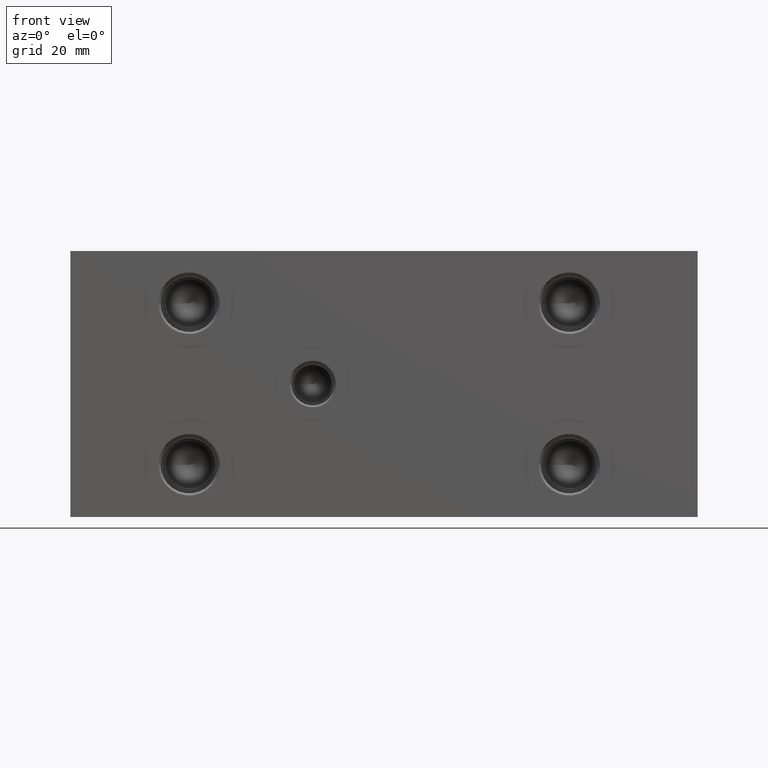
[diagram: clean part render]
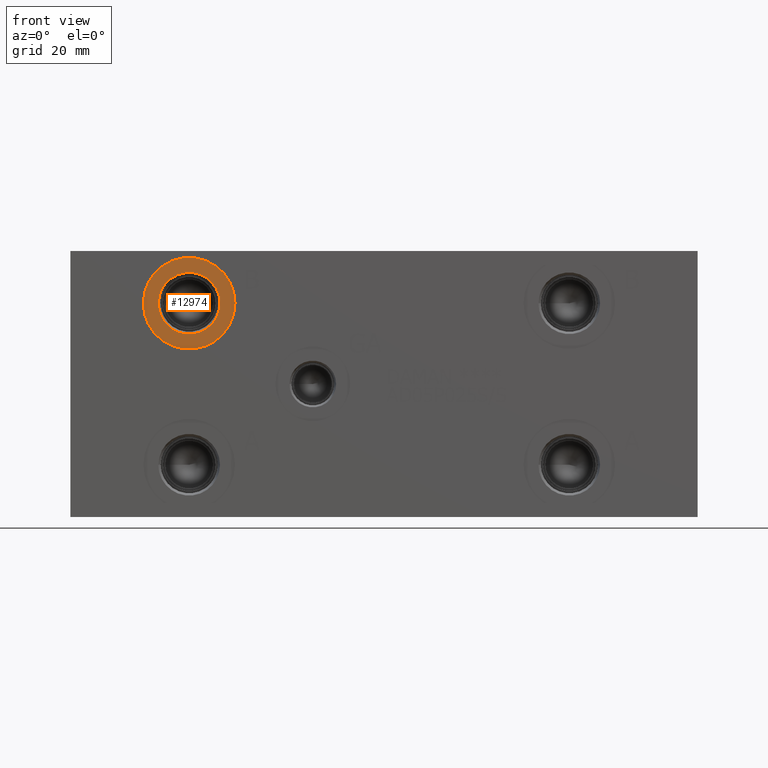
[diagram: same view with one face highlighted and labeled with its STEP entity id]
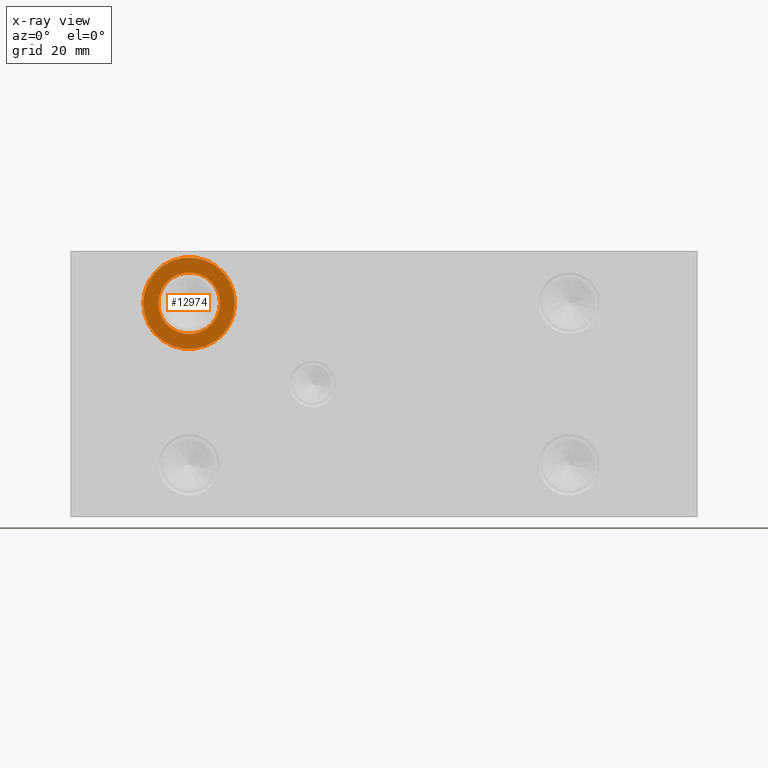
[diagram: x-ray of the same camera — body ghosted, the highlighted face saturated]
A machine part, front view. The second image highlights one B-rep face of the part: STEP entity #12974.
The next image is the same camera in x-ray: the body ghosted, the highlighted face saturated — about 0% of this face is hidden behind the body in this view.
In plain terms, the highlighted planar face has unit normal (0, 1, 0).
Its self-contained STEP definition (entity closure, byte-faithful):
#371=CIRCLE('',#13703,15.3162);
#372=CIRCLE('',#13704,15.3162);
#373=CIRCLE('',#13706,10.2997);
#374=CIRCLE('',#13707,10.2997);
#551=FACE_BOUND('',#2467,.T.);
#1711=FACE_OUTER_BOUND('',#2466,.T.);
#2466=EDGE_LOOP('',(#11149,#11150));
#2467=EDGE_LOOP('',(#11151,#11152));
#5995=VERTEX_POINT('',#22326);
#5996=VERTEX_POINT('',#22328);
#5997=VERTEX_POINT('',#22332);
#5998=VERTEX_POINT('',#22333);
#7760=EDGE_CURVE('',#5995,#5996,#371,.T.);
#7761=EDGE_CURVE('',#5996,#5995,#372,.T.);
#7762=EDGE_CURVE('',#5997,#5998,#373,.T.);
#7763=EDGE_CURVE('',#5998,#5997,#374,.T.);
#11149=ORIENTED_EDGE('',*,*,#7761,.F.);
#11150=ORIENTED_EDGE('',*,*,#7760,.F.);
#11151=ORIENTED_EDGE('',*,*,#7762,.T.);
#11152=ORIENTED_EDGE('',*,*,#7763,.T.);
#11872=PLANE('',#13705);
#12974=ADVANCED_FACE('',(#1711,#551),#11872,.F.);
#13703=AXIS2_PLACEMENT_3D('',#22329,#16257,#16258);
#13704=AXIS2_PLACEMENT_3D('',#22330,#16259,#16260);
#13705=AXIS2_PLACEMENT_3D('',#22331,#16261,#16262);
#13706=AXIS2_PLACEMENT_3D('',#22334,#16263,#16264);
#13707=AXIS2_PLACEMENT_3D('',#22335,#16265,#16266);
#16257=DIRECTION('center_axis',(0.,1.,0.));
#16258=DIRECTION('ref_axis',(1.,0.,0.));
#16259=DIRECTION('center_axis',(0.,1.,0.));
#16260=DIRECTION('ref_axis',(1.,0.,0.));
#16261=DIRECTION('center_axis',(0.,1.,0.));
#16262=DIRECTION('ref_axis',(0.,0.,1.));
#16263=DIRECTION('center_axis',(0.,1.,0.));
#16264=DIRECTION('ref_axis',(1.,0.,0.));
#16265=DIRECTION('center_axis',(0.,1.,0.));
#16266=DIRECTION('ref_axis',(1.,0.,0.));
#22326=CARTESIAN_POINT('',(24.3586,0.7874,71.4248));
#22328=CARTESIAN_POINT('',(54.991,0.7874,71.4248));
#22329=CARTESIAN_POINT('Origin',(39.6748,0.7874,71.4248));
#22330=CARTESIAN_POINT('Origin',(39.6748,0.7874,71.4248));
#22331=CARTESIAN_POINT('Origin',(49.9745,0.7874,71.4248));
#22332=CARTESIAN_POINT('',(49.9745,0.7874,71.4248));
#22333=CARTESIAN_POINT('',(29.3751,0.787400000000001,71.4248));
#22334=CARTESIAN_POINT('Origin',(39.6748,0.7874,71.4248));
#22335=CARTESIAN_POINT('Origin',(39.6748,0.7874,71.4248));